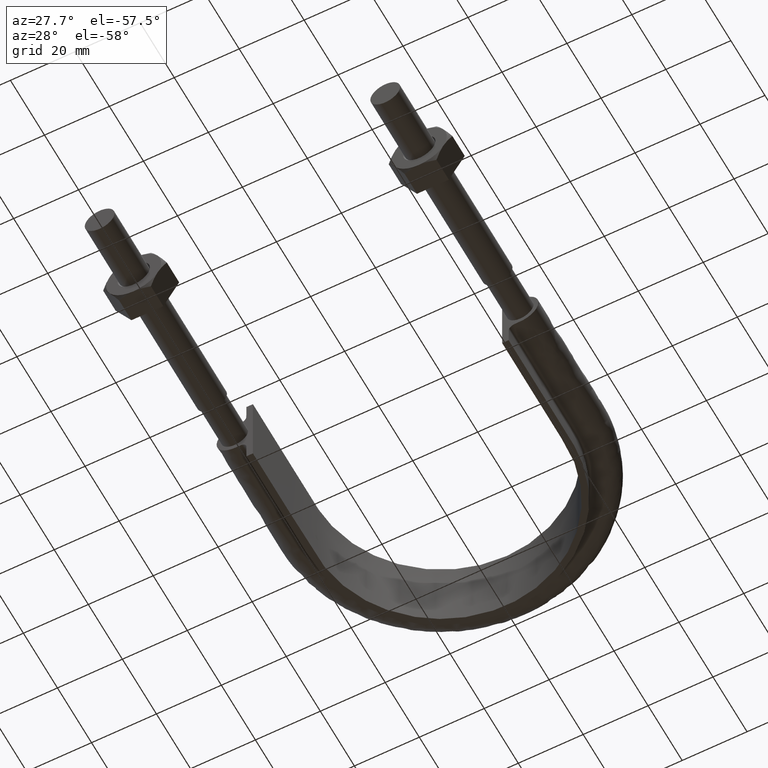
[diagram: clean part render]
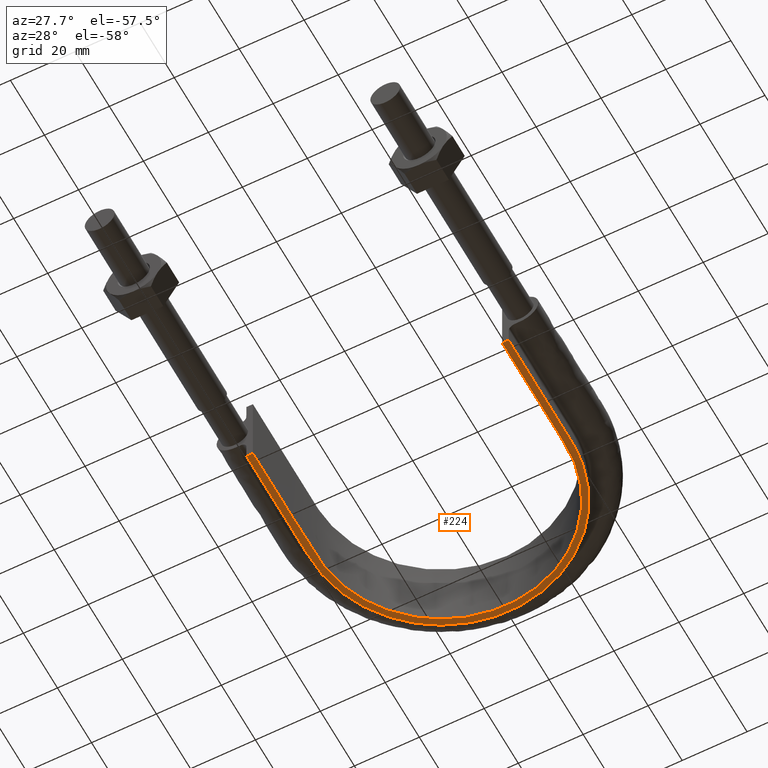
[diagram: same view with one face highlighted and labeled with its STEP entity id]
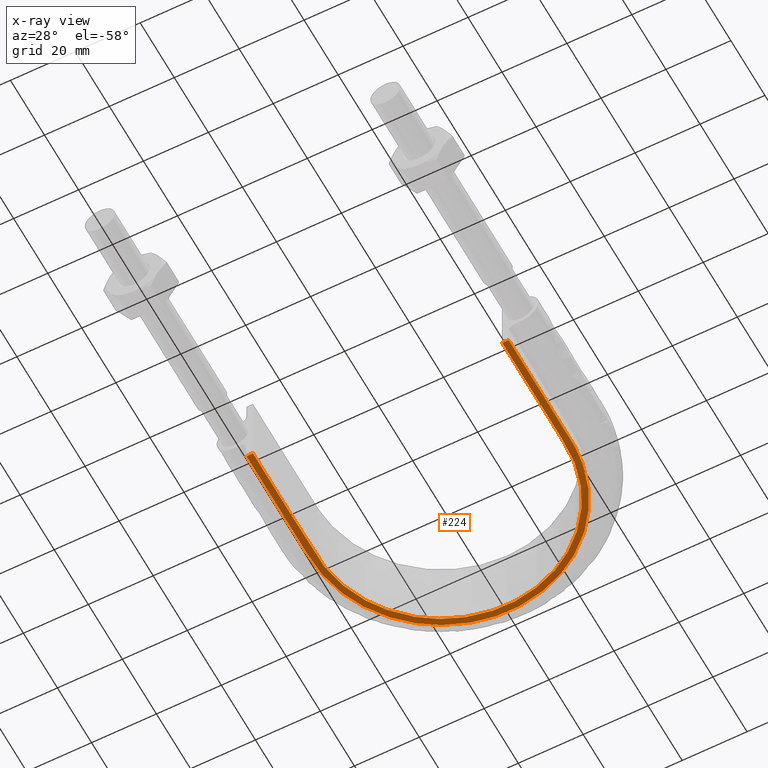
[diagram: x-ray of the same camera — body ghosted, the highlighted face saturated]
A machine part, auxiliary view. The second image highlights one B-rep face of the part: STEP entity #224.
The next image is the same camera in x-ray: the body ghosted, the highlighted face saturated — about 0% of this face is hidden behind the body in this view.
In plain terms, the highlighted planar face has unit normal (0, 0, 1).
Its self-contained STEP definition (entity closure, byte-faithful):
#224 = ADVANCED_FACE( '', ( #308 ), #309, .F. );
#308 = FACE_OUTER_BOUND( '', #1007, .T. );
#309 = PLANE( '', #1008 );
#1007 = EDGE_LOOP( '', ( #1514, #1515, #1516, #1517 ) );
#1008 = AXIS2_PLACEMENT_3D( '', #1518, #1519, #1520 );
#1514 = ORIENTED_EDGE( '', *, *, #2016, .F. );
#1515 = ORIENTED_EDGE( '', *, *, #2006, .F. );
#1516 = ORIENTED_EDGE( '', *, *, #2008, .F. );
#1517 = ORIENTED_EDGE( '', *, *, #2014, .F. );
#1518 = CARTESIAN_POINT( '', ( 55.0000000000000, 179.300000000000, -12.5000000000000 ) );
#1519 = DIRECTION( '', ( 0.000000000000000, 0.000000000000000, 1.00000000000000 ) );
#1520 = DIRECTION( '', ( 1.00000000000000, 0.000000000000000, 0.000000000000000 ) );
#2006 = EDGE_CURVE( '', #2160, #2156, #2162, .T. );
#2008 = EDGE_CURVE( '', #2165, #2160, #2166, .F. );
#2014 = EDGE_CURVE( '', #2173, #2165, #2175, .T. );
#2016 = EDGE_CURVE( '', #2156, #2173, #2178, .F. );
#2156 = VERTEX_POINT( '', #2406 );
#2160 = VERTEX_POINT( '', #2412 );
#2162 = LINE( '', #2444, #2445 );
#2165 = VERTEX_POINT( '', #2457 );
#2166 = B_SPLINE_CURVE_WITH_KNOTS( '', 3, ( #2458, #2459, #2460, #2461, #2462, #2463, #2464, #2465, #2466, #2467, #2468, #2469, #2470, #2471, #2472, #2473, #2474 ), .UNSPECIFIED., .F., .F., ( 4, 3, 1, 1, 1, 1, 1, 1, 1, 3, 4 ), ( 0.0698254364089770, 1.00000000000000, 1.50000000000000, 2.00000000000000, 3.00000000000000, 4.00000000000000, 5.00000000000000, 6.00000000000000, 6.50000000000000, 7.00000000000000, 7.93017456359102 ), .UNSPECIFIED. );
#2173 = VERTEX_POINT( '', #2613 );
#2175 = LINE( '', #2616, #2617 );
#2178 = B_SPLINE_CURVE_WITH_KNOTS( '', 3, ( #2629, #2630, #2631, #2632, #2633, #2634, #2635, #2636, #2637, #2638, #2639, #2640, #2641, #2642, #2643, #2644, #2645 ), .UNSPECIFIED., .F., .F., ( 4, 3, 1, 1, 1, 1, 1, 1, 1, 3, 4 ), ( -7.93017456359102, -7.00000000000000, -6.50000000000000, -6.00000000000000, -5.00000000000000, -4.00000000000000, -3.00000000000000, -2.00000000000000, -1.50000000000000, -1.00000000000000, -0.0698254364089773 ), .UNSPECIFIED. );
#2406 = CARTESIAN_POINT( '', ( -38.4000000000000, 79.3000000000000, -12.5000000000000 ) );
#2412 = CARTESIAN_POINT( '', ( -40.4000000000000, 79.3000000000000, -12.5000000000000 ) );
#2444 = CARTESIAN_POINT( '', ( -55.0000000000000, 79.3000000000000, -12.5000000000000 ) );
#2445 = VECTOR( '', #3072, 1000.00000000000 );
#2457 = CARTESIAN_POINT( '', ( 40.4000000000000, 79.3000000000000, -12.5000000000000 ) );
#2458 = CARTESIAN_POINT( '', ( -40.4000000000000, 79.3000000000000, -12.5000000000000 ) );
#2459 = CARTESIAN_POINT( '', ( -40.4000000000000, 91.7333333333333, -12.5000000000000 ) );
#2460 = CARTESIAN_POINT( '', ( -40.4000000000000, 104.166666666666, -12.5000000000000 ) );
#2461 = CARTESIAN_POINT( '', ( -40.4000000000000, 116.600000000000, -12.5000000000000 ) );
#2462 = CARTESIAN_POINT( '', ( -40.4000000000000, 120.116528833197, -12.5000000000000 ) );
#2463 = CARTESIAN_POINT( '', ( -39.4544182095027, 127.175179019489, -12.5000000000000 ) );
#2464 = CARTESIAN_POINT( '', ( -34.0439198137652, 140.322280291266, -12.5000000000000 ) );
#2465 = CARTESIAN_POINT( '', ( -21.1440253219688, 153.223582281160, -12.5000000000000 ) );
#2466 = CARTESIAN_POINT( '', ( 3.68047857714383E-014, 158.888208859420, -12.5000000000000 ) );
#2467 = CARTESIAN_POINT( '', ( 21.1440253219689, 153.223582281160, -12.5000000000000 ) );
#2468 = CARTESIAN_POINT( '', ( 34.0439198137653, 140.322280291266, -12.5000000000000 ) );
#2469 = CARTESIAN_POINT( '', ( 39.4544182095027, 127.175179019489, -12.5000000000000 ) );
#2470 = CARTESIAN_POINT( '', ( 40.4000000000000, 120.116528833197, -12.5000000000000 ) );
#2471 = CARTESIAN_POINT( '', ( 40.4000000000000, 116.600000000000, -12.5000000000000 ) );
#2472 = CARTESIAN_POINT( '', ( 40.4000000000000, 104.166666666666, -12.5000000000000 ) );
#2473 = CARTESIAN_POINT( '', ( 40.4000000000000, 91.7333333333333, -12.5000000000000 ) );
#2474 = CARTESIAN_POINT( '', ( 40.4000000000000, 79.3000000000000, -12.5000000000000 ) );
#2613 = CARTESIAN_POINT( '', ( 38.4000000000000, 79.3000000000000, -12.5000000000000 ) );
#2616 = CARTESIAN_POINT( '', ( -55.0000000000000, 79.3000000000000, -12.5000000000000 ) );
#2617 = VECTOR( '', #3075, 1000.00000000000 );
#2629 = CARTESIAN_POINT( '', ( 38.4000000000000, 79.3000000000000, -12.5000000000000 ) );
#2630 = CARTESIAN_POINT( '', ( 38.4000000000000, 91.7333333333333, -12.5000000000000 ) );
#2631 = CARTESIAN_POINT( '', ( 38.4000000000000, 104.166666666667, -12.5000000000000 ) );
#2632 = CARTESIAN_POINT( '', ( 38.4000000000000, 116.600000000000, -12.5000000000000 ) );
#2633 = CARTESIAN_POINT( '', ( 38.4000000000000, 119.937896038243, -12.5000000000000 ) );
#2634 = CARTESIAN_POINT( '', ( 37.5004323173849, 126.653498701236, -12.5000000000000 ) );
#2635 = CARTESIAN_POINT( '', ( 32.3590360537293, 139.146842750795, -12.5000000000000 ) );
#2636 = CARTESIAN_POINT( '', ( 20.0971465093487, 151.410921736661, -12.5000000000000 ) );
#2637 = CARTESIAN_POINT( '', ( 3.30789466943439E-014, 156.794539131670, -12.5000000000000 ) );
#2638 = CARTESIAN_POINT( '', ( -20.0971465093486, 151.410921736661, -12.5000000000000 ) );
#2639 = CARTESIAN_POINT( '', ( -32.3590360537293, 139.146842750795, -12.5000000000000 ) );
#2640 = CARTESIAN_POINT( '', ( -37.5004323173848, 126.653498701236, -12.5000000000000 ) );
#2641 = CARTESIAN_POINT( '', ( -38.4000000000000, 119.937896038243, -12.5000000000000 ) );
#2642 = CARTESIAN_POINT( '', ( -38.4000000000000, 116.600000000000, -12.5000000000000 ) );
#2643 = CARTESIAN_POINT( '', ( -38.4000000000000, 104.166666666667, -12.5000000000000 ) );
#2644 = CARTESIAN_POINT( '', ( -38.4000000000000, 91.7333333333333, -12.5000000000000 ) );
#2645 = CARTESIAN_POINT( '', ( -38.4000000000000, 79.3000000000000, -12.5000000000000 ) );
#3072 = DIRECTION( '', ( 1.00000000000000, -1.83649404852125E-048, 0.000000000000000 ) );
#3075 = DIRECTION( '', ( 1.00000000000000, -1.83649404852125E-048, 0.000000000000000 ) );